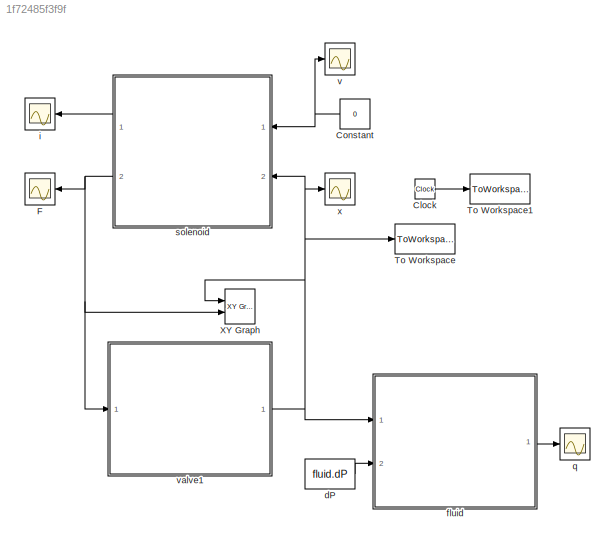
MODEL slx_1f72485f3f9f
KIND model
CONFIG AbsTol = auto
CONFIG EnableMultiTasking = off
CONFIG FixedStep = auto
CONFIG InitFcn = params_SMA
CONFIG MaxStep = 1e-3
CONFIG MinStep = auto
CONFIG RelTol = 1e-3
CONFIG SampleTimeConstraint = Unconstrained
CONFIG Solver = ode15s
CONFIG SolverName = ode15s
CONFIG StartTime = 0.0
CONFIG StopTime = 30
BLOCK [Clock] Clock
BLOCK [Constant] Constant
  Value = 0
BLOCK [Scope] F
  Floating = off
  NumInputPorts = 1
  Ports = [1]
  ScopeSpecificationString = Simulink.scopes.TimeScopeBlockCfg('CurrentConfiguration', extmgr.ConfigurationSet(extmgr.Configuration('Core','General UI',true),extmgr.Configuration('Core','Source UI',true),extmgr.Configuration('Sources','WiredSimulink',true,'DataLoggingVariableName','ScopeData5'),extmgr.Configuration('Visuals','Time Domain',true,'SerializedDisplays',{struct('MinYLimReal','-0.01978','MaxYLimReal','0.17798','YLab...<+1432ch>
BLOCK [ToWorkspace] To Workspace
  FixptAsFi = on
  MaxDataPoints = inf
  Ports = [1]
  SampleTime = -1
  Save2DSignal = 3-D array (concatenate along third dimension)
  VariableName = displacement
BLOCK [ToWorkspace] To Workspace1
  FixptAsFi = on
  MaxDataPoints = inf
  Ports = [1]
  SampleTime = -1
  Save2DSignal = 3-D array (concatenate along third dimension)
  VariableName = time
BLOCK [Reference] XY Graph  REF=simulink/Sinks/XY Graph
  Ports = [2]
  SourceBlock = simulink/Sinks/XY Graph
  SourceProductBaseCode = SL
  SourceProductName = Simulink
  SourceType = XY scope.
BLOCK [Constant] dP
  Value = fluid.dP
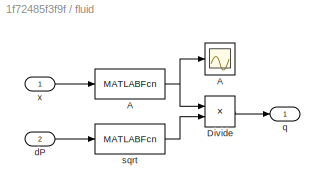
BLOCK [SubSystem] fluid
  Ports = [2, 1]
  RequestExecContextInheritance = off
BLOCK [MATLABFcn] fluid/A
  MATLABFcn = fluid.A(u)
  Ports = [1, 1]
BLOCK [Scope] fluid/A 
  Floating = off
  NumInputPorts = 1
  Ports = [1]
  ScopeSpecificationString = Simulink.scopes.TimeScopeBlockCfg('CurrentConfiguration', extmgr.ConfigurationSet(extmgr.Configuration('Core','General UI',true),extmgr.Configuration('Core','Source UI',true),extmgr.Configuration('Sources','WiredSimulink',true,'DataLoggingVariableName','ScopeData2'),extmgr.Configuration('Visuals','Time Domain',true,'SerializedDisplays',{struct('MinYLimReal','-0.00006','MaxYLimReal','0.00056','YLab...<+1432ch>
BLOCK [Product] fluid/Divide
  InputSameDT = off
  Inputs = **
  OutDataTypeStr = Inherit: Inherit via internal rule
  Ports = [2, 1]
  RndMeth = Floor
  SaturateOnIntegerOverflow = off
BLOCK [Inport] fluid/dP
  IconDisplay = Port number
  Port = 2
BLOCK [Outport] fluid/q
  IconDisplay = Port number
BLOCK [MATLABFcn] fluid/sqrt
  MATLABFcn = fluid.eta*sqrt(2*u/fluid.rho)
  Ports = [1, 1]
BLOCK [Inport] fluid/x
  IconDisplay = Port number
BLOCK [Scope] i
  Floating = off
  NumInputPorts = 1
  Ports = [1]
  ScopeSpecificationString = Simulink.scopes.TimeScopeBlockCfg('CurrentConfiguration', extmgr.ConfigurationSet(extmgr.Configuration('Core','General UI',true),extmgr.Configuration('Core','Source UI',true),extmgr.Configuration('Sources','WiredSimulink',true,'DataLoggingVariableName','ScopeData7'),extmgr.Configuration('Visuals','Time Domain',true,'SerializedDisplays',{struct('MinYLimReal','-0.05973','MaxYLimReal','0.53755','YLab...<+1443ch>
BLOCK [Scope] q
  Floating = off
  NumInputPorts = 1
  Ports = [1]
  ScopeSpecificationString = Simulink.scopes.TimeScopeBlockCfg('CurrentConfiguration', extmgr.ConfigurationSet(extmgr.Configuration('Core','General UI',true),extmgr.Configuration('Core','Source UI',true),extmgr.Configuration('Sources','WiredSimulink',true,'DataLoggingVariableName','ScopeData1'),extmgr.Configuration('Visuals','Time Domain',true,'SerializedDisplays',{struct('MinYLimReal','-0.000003','MaxYLimReal','0.00003','YLa...<+1440ch>
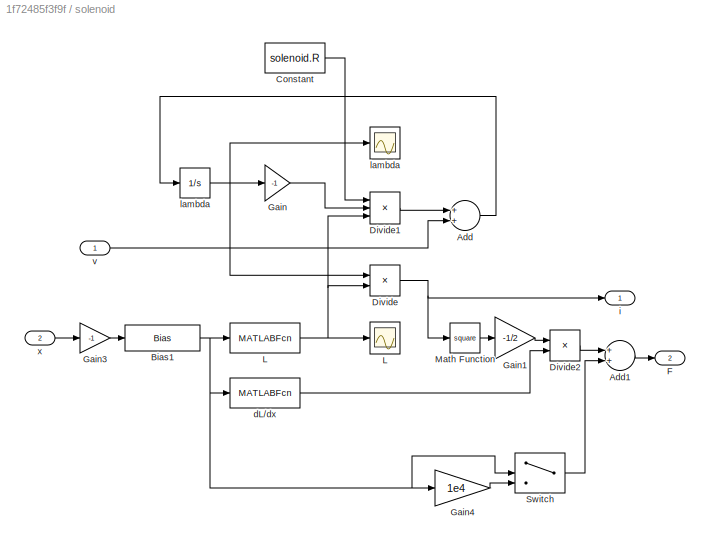
BLOCK [SubSystem] solenoid
  Ports = [2, 2]
  RequestExecContextInheritance = off
BLOCK [Sum] solenoid/Add
  InputSameDT = off
  OutDataTypeStr = Inherit: Inherit via internal rule
  Ports = [2, 1]
  SaturateOnIntegerOverflow = off
BLOCK [Sum] solenoid/Add1
  InputSameDT = off
  OutDataTypeStr = Inherit: Inherit via internal rule
  Ports = [2, 1]
  SaturateOnIntegerOverflow = off
BLOCK [Bias] solenoid/Bias1
  Bias = solenoid.x_0
  SaturateOnIntegerOverflow = off
BLOCK [Constant] solenoid/Constant
  Value = solenoid.R
BLOCK [Product] solenoid/Divide
  InputSameDT = off
  Inputs = */
  OutDataTypeStr = Inherit: Inherit via internal rule
  Ports = [2, 1]
  RndMeth = Floor
  SaturateOnIntegerOverflow = off
BLOCK [Product] solenoid/Divide1
  InputSameDT = off
  Inputs = **/
  OutDataTypeStr = Inherit: Inherit via internal rule
  Ports = [3, 1]
  RndMeth = Floor
  SaturateOnIntegerOverflow = off
BLOCK [Product] solenoid/Divide2
  InputSameDT = off
  Inputs = **
  OutDataTypeStr = Inherit: Inherit via internal rule
  Ports = [2, 1]
  RndMeth = Floor
  SaturateOnIntegerOverflow = off
BLOCK [Outport] solenoid/F
  IconDisplay = Port number
  Port = 2
BLOCK [Gain] solenoid/Gain
  Gain = -1
  OutDataTypeStr = Inherit: Inherit via internal rule
  ParamDataTypeStr = Inherit: Inherit via internal rule
  SaturateOnIntegerOverflow = off
BLOCK [Gain] solenoid/Gain1
  Gain = -1/2
  OutDataTypeStr = Inherit: Inherit via internal rule
  ParamDataTypeStr = Inherit: Inherit via internal rule
  SaturateOnIntegerOverflow = off
BLOCK [Gain] solenoid/Gain3
  Gain = -1
  OutDataTypeStr = Inherit: Inherit via internal rule
  ParamDataTypeStr = Inherit: Inherit via internal rule
  SaturateOnIntegerOverflow = off
BLOCK [Gain] solenoid/Gain4
  Gain = 1e4
  OutDataTypeStr = Inherit: Inherit via internal rule
  ParamDataTypeStr = Inherit: Inherit via internal rule
  SaturateOnIntegerOverflow = off
BLOCK [MATLABFcn] solenoid/L
  MATLABFcn = (solenoid.mu_0*solenoid.A_f*solenoid.A_g*solenoid.N^2) / (solenoid.A_g*u+solenoid.A_f*solenoid.l_g)
  Ports = [1, 1]
BLOCK [Scope] solenoid/L 
  Floating = off
  NumInputPorts = 1
  Ports = [1]
  ScopeSpecificationString = Simulink.scopes.TimeScopeBlockCfg('CurrentConfiguration', extmgr.ConfigurationSet(extmgr.Configuration('Core','General UI',true),extmgr.Configuration('Core','Source UI',true),extmgr.Configuration('Sources','WiredSimulink',true,'DataLoggingVariableName','ScopeData5'),extmgr.Configuration('Visuals','Time Domain',true,'SerializedDisplays',{struct('MinYLimReal','0.06211','MaxYLimReal','0.08013','YLabe...<+1385ch>
BLOCK [Math] solenoid/Math Function
  Operator = square
  Ports = [1, 1]
BLOCK [Switch] solenoid/Switch
  Criteria = u2 > Threshold
  InputSameDT = off
  SaturateOnIntegerOverflow = off
BLOCK [MATLABFcn] solenoid/dL//dx
  MATLABFcn = -(solenoid.mu_0*solenoid.A_f*solenoid.A_g*solenoid.N^2*solenoid.A_g) / (solenoid.A_g*u+solenoid.A_f*solenoid.l_g)^2
  Ports = [1, 1]
BLOCK [Outport] solenoid/i
  IconDisplay = Port number
BLOCK [Integrator] solenoid/lambda
  Ports = [1, 1]
BLOCK [Scope] solenoid/lambda 
  Floating = off
  NumInputPorts = 1
  Ports = [1]
  ScopeSpecificationString = Simulink.scopes.TimeScopeBlockCfg('CurrentConfiguration', extmgr.ConfigurationSet(extmgr.Configuration('Core','General UI',true),extmgr.Configuration('Core','Source UI',true),extmgr.Configuration('Sources','WiredSimulink',true,'DataLoggingVariableName','ScopeData2'),extmgr.Configuration('Visuals','Time Domain',true,'SerializedDisplays',{struct('MinYLimReal','-0.00842','MaxYLimReal','0.07581','YLab...<+1395ch>
BLOCK [Inport] solenoid/v
  IconDisplay = Port number
BLOCK [Inport] solenoid/x
  IconDisplay = Port number
  Port = 2
BLOCK [Scope] v 
  Floating = off
  NumInputPorts = 1
  Ports = [1]
  ScopeSpecificationString = Simulink.scopes.TimeScopeBlockCfg('CurrentConfiguration', extmgr.ConfigurationSet(extmgr.Configuration('Core','General UI',true),extmgr.Configuration('Core','Source UI',true),extmgr.Configuration('Sources','WiredSimulink',true,'DataLoggingVariableName','ScopeData8'),extmgr.Configuration('Visuals','Time Domain',true,'SerializedDisplays',{struct('MinYLimReal','-1.5','MaxYLimReal','13.5','YLabelReal'...<+1383ch>
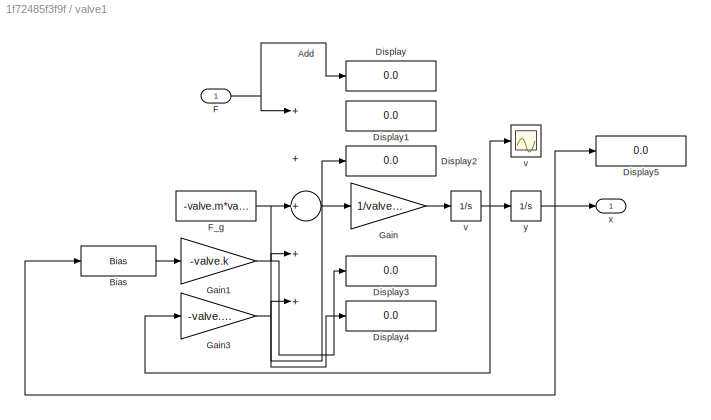
BLOCK [SubSystem] valve1
  Ports = [1, 1]
  RequestExecContextInheritance = off
BLOCK [Sum] valve1/Add
  InputSameDT = off
  Inputs = +++++
  OutDataTypeStr = Inherit: Inherit via internal rule
  Ports = [5, 1]
  SaturateOnIntegerOverflow = off
BLOCK [Bias] valve1/Bias
  Bias = -valve.x_0
  SaturateOnIntegerOverflow = off
BLOCK [Display] valve1/Display
  Decimation = 1
  Ports = [1]
BLOCK [Display] valve1/Display1
  Decimation = 1
  Ports = [1]
BLOCK [Display] valve1/Display2
  Decimation = 1
  Ports = [1]
BLOCK [Display] valve1/Display3
  Decimation = 1
  Ports = [1]
BLOCK [Display] valve1/Display4
  Decimation = 1
  Ports = [1]
BLOCK [Display] valve1/Display5
  Decimation = 1
  Ports = [1]
BLOCK [Inport] valve1/F
  IconDisplay = Port number
BLOCK [Constant] valve1/F_g
  Value = -valve.m*valve.g
BLOCK [Gain] valve1/Gain
  Gain = 1/valve.m
  OutDataTypeStr = Inherit: Inherit via internal rule
  ParamDataTypeStr = Inherit: Inherit via internal rule
  SaturateOnIntegerOverflow = off
BLOCK [Gain] valve1/Gain1
  Gain = -valve.k
  OutDataTypeStr = Inherit: Inherit via internal rule
  ParamDataTypeStr = Inherit: Inherit via internal rule
  SaturateOnIntegerOverflow = off
BLOCK [Gain] valve1/Gain3
  Gain = -valve.b_d
  OutDataTypeStr = Inherit: Inherit via internal rule
  ParamDataTypeStr = Inherit: Inherit via internal rule
  SaturateOnIntegerOverflow = off
BLOCK [Integrator] valve1/v
  InitialCondition = valve.v_0
  Ports = [1, 1]
BLOCK [Scope] valve1/v 
  Floating = off
  NumInputPorts = 1
  Ports = [1]
  ScopeSpecificationString = Simulink.scopes.TimeScopeBlockCfg('CurrentConfiguration', extmgr.ConfigurationSet(extmgr.Configuration('Core','General UI',true),extmgr.Configuration('Core','Source UI',true),extmgr.Configuration('Sources','WiredSimulink',true,'DataLoggingVariableName','ScopeData3'),extmgr.Configuration('Visuals','Time Domain',true,'SerializedDisplays',{struct('MinYLimReal','-0.01951','MaxYLimReal','0.0273','YLabe...<+1383ch>
BLOCK [Outport] valve1/x
  IconDisplay = Port number
BLOCK [Integrator] valve1/y
  InitialCondition = valve.y_0
  Ports = [1, 1]
BLOCK [Scope] x
  Floating = off
  NumInputPorts = 1
  Ports = [1]
  ScopeSpecificationString = Simulink.scopes.TimeScopeBlockCfg('CurrentConfiguration', extmgr.ConfigurationSet(extmgr.Configuration('Core','General UI',true),extmgr.Configuration('Core','Source UI',true),extmgr.Configuration('Sources','WiredSimulink',true),extmgr.Configuration('Visuals','Time Domain',true,'SerializedDisplays',{struct('MinYLimReal','-0.02229','MaxYLimReal','0.00248','YLabelReal','','MinYLimMag','0.00000','MaxY...<+1393ch>
LINE Clock:1 -> To Workspace1:1
NET Constant:1 -> solenoid:1, v :1
LINE dP:1 -> fluid:2
NET fluid/A:1 -> fluid/A :1, fluid/Divide:1
LINE fluid/Divide:1 -> fluid/q:1
LINE fluid/dP:1 -> fluid/sqrt:1
LINE fluid/sqrt:1 -> fluid/Divide:2
LINE fluid/x:1 -> fluid/A:1
LINE fluid:1 -> q:1
LINE solenoid/Add1:1 -> solenoid/F:1
LINE solenoid/Add:1 -> solenoid/lambda:1
NET solenoid/Bias1:1 -> solenoid/Gain4:1, solenoid/L:1, solenoid/Switch:2, solenoid/dL//dx:1
LINE solenoid/Constant:1 -> solenoid/Divide1:1
LINE solenoid/Divide1:1 -> solenoid/Add:1
LINE solenoid/Divide2:1 -> solenoid/Add1:1
NET solenoid/Divide:1 -> solenoid/Math Function:1, solenoid/i:1
LINE solenoid/Gain1:1 -> solenoid/Divide2:1
LINE solenoid/Gain3:1 -> solenoid/Bias1:1
LINE solenoid/Gain4:1 -> solenoid/Switch:3
LINE solenoid/Gain:1 -> solenoid/Divide1:2
NET solenoid/L:1 -> solenoid/Divide1:3, solenoid/Divide:2, solenoid/L :1
LINE solenoid/Math Function:1 -> solenoid/Gain1:1
LINE solenoid/Switch:1 -> solenoid/Add1:2
LINE solenoid/dL//dx:1 -> solenoid/Divide2:2
NET solenoid/lambda:1 -> solenoid/Divide:1, solenoid/Gain:1, solenoid/lambda :1
LINE solenoid/v:1 -> solenoid/Add:2
LINE solenoid/x:1 -> solenoid/Gain3:1
LINE solenoid:1 -> i:1
NET solenoid:2 -> F:1, XY Graph:2, valve1:1
LINE valve1/Add:1 -> valve1/Gain:1
LINE valve1/Bias:1 -> valve1/Gain1:1
NET valve1/F:1 -> valve1/Add:1, valve1/Display:1
NET valve1/F_g:1 -> valve1/Add:3, valve1/Display2:1
NET valve1/Gain1:1 -> valve1/Add:4, valve1/Display3:1
NET valve1/Gain3:1 -> valve1/Add:5, valve1/Display4:1
LINE valve1/Gain:1 -> valve1/v:1
NET valve1/v:1 -> valve1/Gain3:1, valve1/v :1, valve1/y:1
NET valve1/y:1 -> valve1/Bias:1, valve1/Display5:1, valve1/x:1
NET valve1:1 -> To Workspace:1, XY Graph:1, fluid:1, solenoid:2, x:1
note: NET lines group one-source signal fan-out (src -> all destinations, sorted); 1:1 wires keep LINE
